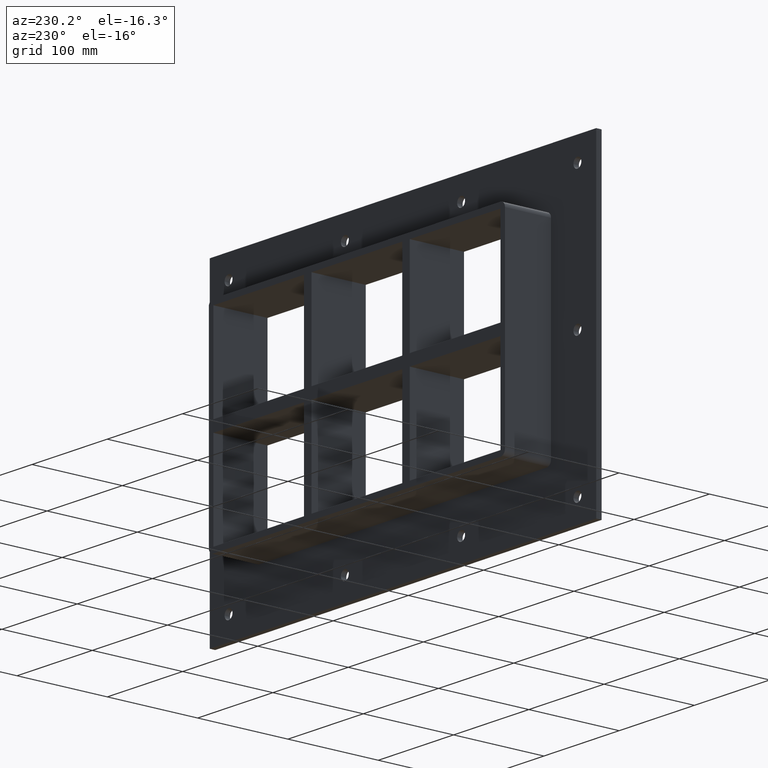
[diagram: clean part render]
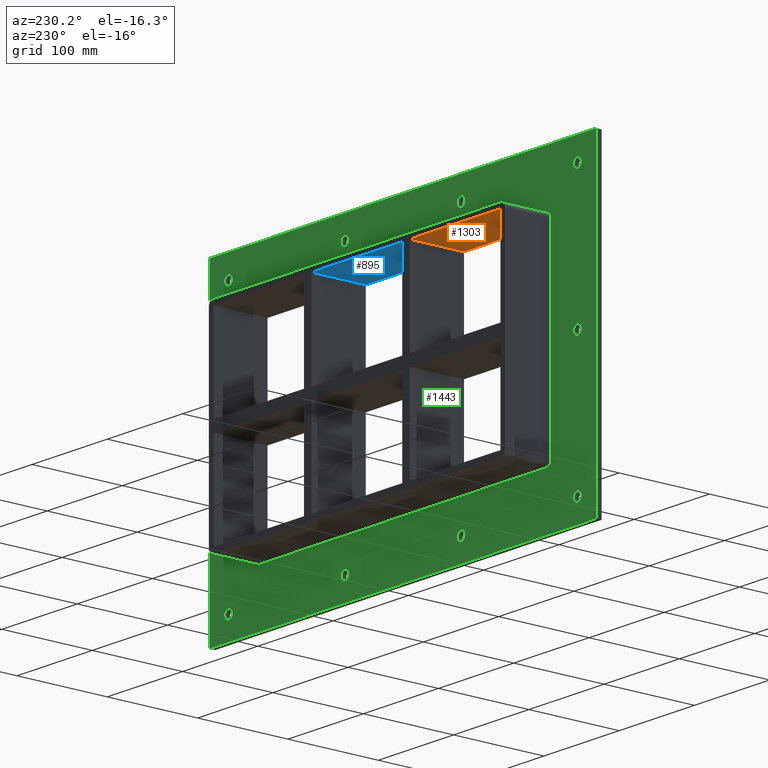
[diagram: same view with three faces highlighted in distinct colors, each labeled with its STEP entity id]
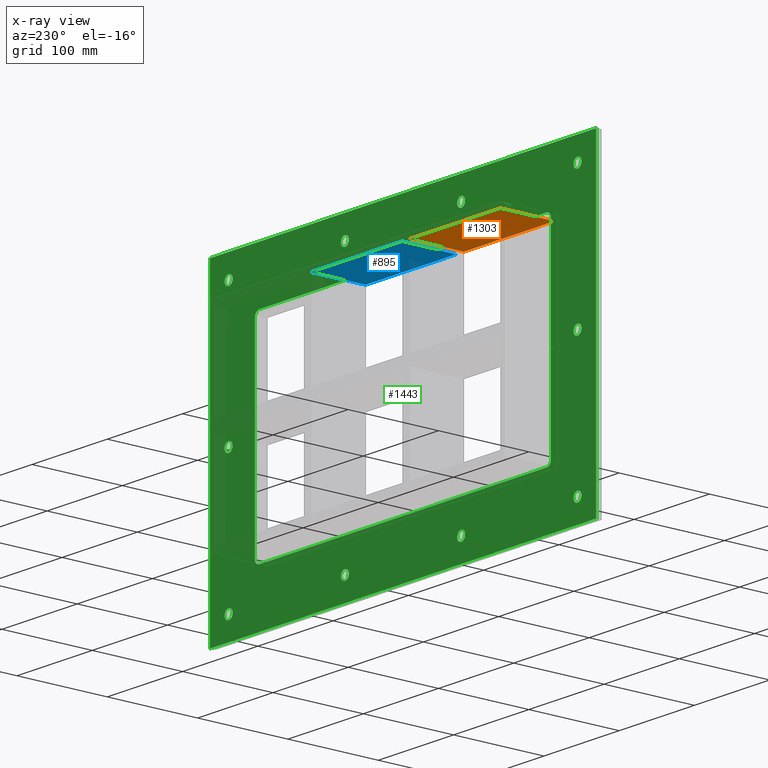
[diagram: x-ray of the same camera — body ghosted, the three highlighted faces saturated]
A machine part, auxiliary view with three faces highlighted in distinct colors.
The next image is the same camera in x-ray (body ghosted, the three faces saturated) — at least one of them is partly hidden behind the body in this view.
Their STEP definitions:

[orange] entity #1303 — the highlighted planar face has unit normal (0, 0, 1).
#767=CARTESIAN_POINT('',(-190.75000000000003,-3.0,107.00000000000003));
#768=VERTEX_POINT('',#767);
#775=CARTESIAN_POINT('',(-70.250000000002117,-3.0,107.00000000000003));
#776=VERTEX_POINT('',#775);
#777=CARTESIAN_POINT('',(-190.75000000000003,-3.0,107.00000000000003));
#778=DIRECTION('',(1.0,0.0,0.0));
#779=VECTOR('',#778,120.49999999999791);
#780=LINE('',#777,#779);
#781=EDGE_CURVE('',#768,#776,#780,.T.);
#1012=CARTESIAN_POINT('',(-190.75000000000003,57.0,107.00000000000003));
#1013=VERTEX_POINT('',#1012);
#1020=CARTESIAN_POINT('',(-190.75000000000003,-3.0,107.00000000000003));
#1021=DIRECTION('',(0.0,1.0,0.0));
#1022=VECTOR('',#1021,60.0);
#1023=LINE('',#1020,#1022);
#1024=EDGE_CURVE('',#768,#1013,#1023,.T.);
#1199=CARTESIAN_POINT('',(-70.250000000002117,57.0,107.00000000000003));
#1200=VERTEX_POINT('',#1199);
#1207=CARTESIAN_POINT('',(-70.250000000002117,57.0,107.00000000000003));
#1208=DIRECTION('',(-1.0,0.0,0.0));
#1209=VECTOR('',#1208,120.49999999999791);
#1210=LINE('',#1207,#1209);
#1211=EDGE_CURVE('',#1200,#1013,#1210,.T.);
#1224=CARTESIAN_POINT('',(-70.250000000002117,57.000000000000007,107.00000000000003));
#1225=DIRECTION('',(0.0,-1.0,0.0));
#1226=VECTOR('',#1225,60.000000000000007);
#1227=LINE('',#1224,#1226);
#1228=EDGE_CURVE('',#1200,#776,#1227,.T.);
#1292=CARTESIAN_POINT('',(-190.75000000000003,0.0,107.00000000000003));
#1293=DIRECTION('',(0.0,0.0,1.0));
#1294=DIRECTION('',(1.0,0.0,0.0));
#1295=AXIS2_PLACEMENT_3D('',#1292,#1293,#1294);
#1296=PLANE('',#1295);
#1297=ORIENTED_EDGE('',*,*,#1228,.T.);
#1298=ORIENTED_EDGE('',*,*,#781,.F.);
#1299=ORIENTED_EDGE('',*,*,#1024,.T.);
#1300=ORIENTED_EDGE('',*,*,#1211,.F.);
#1301=EDGE_LOOP('',(#1297,#1298,#1299,#1300));
#1302=FACE_OUTER_BOUND('',#1301,.T.);
#1303=ADVANCED_FACE('',(#1302),#1296,.F.);

[blue] entity #895 — the highlighted planar face has unit normal (0, 0, 1).
#363=CARTESIAN_POINT('',(60.24999999999789,-3.0,107.00000000000003));
#364=VERTEX_POINT('',#363);
#371=CARTESIAN_POINT('',(60.24999999999789,57.0,107.00000000000003));
#372=VERTEX_POINT('',#371);
#373=CARTESIAN_POINT('',(60.24999999999789,57.000000000000007,107.00000000000003));
#374=DIRECTION('',(0.0,-1.0,0.0));
#375=VECTOR('',#374,60.000000000000007);
#376=LINE('',#373,#375);
#377=EDGE_CURVE('',#372,#364,#376,.T.);
#671=CARTESIAN_POINT('',(-60.249999999996362,-3.0,107.00000000000003));
#672=VERTEX_POINT('',#671);
#679=CARTESIAN_POINT('',(-60.249999999996362,-3.0,107.00000000000003));
#680=DIRECTION('',(1.0,0.0,0.0));
#681=VECTOR('',#680,120.49999999999424);
#682=LINE('',#679,#681);
#683=EDGE_CURVE('',#672,#364,#682,.T.);
#872=CARTESIAN_POINT('',(-190.75000000000003,0.0,107.00000000000003));
#873=DIRECTION('',(0.0,0.0,1.0));
#874=DIRECTION('',(1.0,0.0,0.0));
#875=AXIS2_PLACEMENT_3D('',#872,#873,#874);
#876=PLANE('',#875);
#877=ORIENTED_EDGE('',*,*,#377,.T.);
#878=ORIENTED_EDGE('',*,*,#683,.F.);
#879=CARTESIAN_POINT('',(-60.249999999996362,57.0,107.00000000000003));
#880=VERTEX_POINT('',#879);
#881=CARTESIAN_POINT('',(-60.249999999996362,-3.0,107.00000000000003));
#882=DIRECTION('',(0.0,1.0,0.0));
#883=VECTOR('',#882,60.000000000000007);
#884=LINE('',#881,#883);
#885=EDGE_CURVE('',#672,#880,#884,.T.);
#886=ORIENTED_EDGE('',*,*,#885,.T.);
#887=CARTESIAN_POINT('',(60.249999999997883,57.0,107.00000000000003));
#888=DIRECTION('',(-1.0,0.0,0.0));
#889=VECTOR('',#888,120.49999999999424);
#890=LINE('',#887,#889);
#891=EDGE_CURVE('',#372,#880,#890,.T.);
#892=ORIENTED_EDGE('',*,*,#891,.F.);
#893=EDGE_LOOP('',(#877,#878,#886,#892));
#894=FACE_OUTER_BOUND('',#893,.T.);
#895=ADVANCED_FACE('',(#894),#876,.F.);

[green] entity #1443 — the highlighted planar face has unit normal (0, 1, 0).
#73=CARTESIAN_POINT('',(-237.00000000000017,6.000000000000014,-148.00000000000011));
#74=VERTEX_POINT('',#73);
#75=CARTESIAN_POINT('',(-231.75000000000017,6.000000000000014,-148.00000000000011));
#76=DIRECTION('',(0.0,-1.0,0.0));
#77=DIRECTION('',(1.0,0.0,0.0));
#78=AXIS2_PLACEMENT_3D('',#75,#76,#77);
#79=CIRCLE('',#78,5.25);
#80=EDGE_CURVE('',#74,#74,#79,.T.);
#101=CARTESIAN_POINT('',(226.49999999999983,6.000000000000014,-1.065814E-013));
#102=VERTEX_POINT('',#101);
#103=CARTESIAN_POINT('',(231.74999999999983,6.000000000000014,-1.065814E-013));
#104=DIRECTION('',(0.0,-1.0,0.0));
#105=DIRECTION('',(1.0,0.0,0.0));
#106=AXIS2_PLACEMENT_3D('',#103,#104,#105);
#107=CIRCLE('',#106,5.25);
#108=EDGE_CURVE('',#102,#102,#107,.T.);
#129=CARTESIAN_POINT('',(-237.00000000000017,6.000000000000014,-1.065814E-013));
#130=VERTEX_POINT('',#129);
#131=CARTESIAN_POINT('',(-231.75000000000017,6.000000000000014,-1.065814E-013));
#132=DIRECTION('',(0.0,-1.0,0.0));
#133=DIRECTION('',(1.0,0.0,0.0));
#134=AXIS2_PLACEMENT_3D('',#131,#132,#133);
#135=CIRCLE('',#134,5.25);
#136=EDGE_CURVE('',#130,#130,#135,.T.);
#157=CARTESIAN_POINT('',(-82.500000000000171,6.000000000000014,147.99999999999989));
#158=VERTEX_POINT('',#157);
#159=CARTESIAN_POINT('',(-77.250000000000199,6.000000000000014,147.99999999999989));
#160=DIRECTION('',(0.0,-1.0,0.0));
#161=DIRECTION('',(1.0,0.0,0.0));
#162=AXIS2_PLACEMENT_3D('',#159,#160,#161);
#163=CIRCLE('',#162,5.25);
#164=EDGE_CURVE('',#158,#158,#163,.T.);
#185=CARTESIAN_POINT('',(-82.500000000000171,6.000000000000014,-148.00000000000009));
#186=VERTEX_POINT('',#185);
#187=CARTESIAN_POINT('',(-77.250000000000199,6.000000000000014,-148.00000000000009));
#188=DIRECTION('',(0.0,-1.0,0.0));
#189=DIRECTION('',(1.0,0.0,0.0));
#190=AXIS2_PLACEMENT_3D('',#187,#188,#189);
#191=CIRCLE('',#190,5.25);
#192=EDGE_CURVE('',#186,#186,#191,.T.);
#213=CARTESIAN_POINT('',(71.999999999999829,6.000000000000014,147.99999999999989));
#214=VERTEX_POINT('',#213);
#215=CARTESIAN_POINT('',(77.249999999999815,6.000000000000014,147.99999999999989));
#216=DIRECTION('',(0.0,-1.0,0.0));
#217=DIRECTION('',(1.0,0.0,0.0));
#218=AXIS2_PLACEMENT_3D('',#215,#216,#217);
#219=CIRCLE('',#218,5.25);
#220=EDGE_CURVE('',#214,#214,#219,.T.);
#241=CARTESIAN_POINT('',(71.999999999999829,6.000000000000014,-148.00000000000009));
#242=VERTEX_POINT('',#241);
#243=CARTESIAN_POINT('',(77.249999999999815,6.000000000000014,-148.00000000000009));
#244=DIRECTION('',(0.0,-1.0,0.0));
#245=DIRECTION('',(1.0,0.0,0.0));
#246=AXIS2_PLACEMENT_3D('',#243,#244,#245);
#247=CIRCLE('',#246,5.25);
#248=EDGE_CURVE('',#242,#242,#247,.T.);
#269=CARTESIAN_POINT('',(226.49999999999983,6.000000000000014,-148.00000000000009));
#270=VERTEX_POINT('',#269);
#271=CARTESIAN_POINT('',(231.74999999999983,6.000000000000014,-148.00000000000009));
#272=DIRECTION('',(0.0,-1.0,0.0));
#273=DIRECTION('',(1.0,0.0,0.0));
#274=AXIS2_PLACEMENT_3D('',#271,#272,#273);
#275=CIRCLE('',#274,5.25);
#276=EDGE_CURVE('',#270,#270,#275,.T.);
#297=CARTESIAN_POINT('',(-237.00000000000017,6.000000000000014,147.99999999999989));
#298=VERTEX_POINT('',#297);
#299=CARTESIAN_POINT('',(-231.75000000000017,6.000000000000014,147.99999999999989));
#300=DIRECTION('',(0.0,-1.0,0.0));
#301=DIRECTION('',(1.0,0.0,0.0));
#302=AXIS2_PLACEMENT_3D('',#299,#300,#301);
#303=CIRCLE('',#302,5.25);
#304=EDGE_CURVE('',#298,#298,#303,.T.);
#325=CARTESIAN_POINT('',(226.49999999999983,6.000000000000014,147.99999999999989));
#326=VERTEX_POINT('',#325);
#327=CARTESIAN_POINT('',(231.74999999999983,6.000000000000014,147.99999999999989));
#328=DIRECTION('',(0.0,-1.0,0.0));
#329=DIRECTION('',(1.0,0.0,0.0));
#330=AXIS2_PLACEMENT_3D('',#327,#328,#329);
#331=CIRCLE('',#330,5.25);
#332=EDGE_CURVE('',#326,#326,#331,.T.);
#1304=CARTESIAN_POINT('',(-1.984063E-014,6.000000000000001,-1.707121E-014));
#1305=DIRECTION('',(0.0,1.0,0.0));
#1306=DIRECTION('',(0.0,0.0,1.0));
#1307=AXIS2_PLACEMENT_3D('',#1304,#1305,#1306);
#1308=PLANE('',#1307);
#1309=CARTESIAN_POINT('',(-256.75000000000006,6.000000000000001,173.00000000000006));
#1310=VERTEX_POINT('',#1309);
#1311=CARTESIAN_POINT('',(256.75000000000006,6.000000000000001,173.00000000000006));
#1312=VERTEX_POINT('',#1311);
#1313=CARTESIAN_POINT('',(-256.75000000000006,6.000000000000001,173.00000000000006));
#1314=DIRECTION('',(1.0,0.0,0.0));
#1315=VECTOR('',#1314,513.50000000000011);
#1316=LINE('',#1313,#1315);
#1317=EDGE_CURVE('',#1310,#1312,#1316,.T.);
#1318=ORIENTED_EDGE('',*,*,#1317,.T.);
#1319=CARTESIAN_POINT('',(256.75000000000006,6.000000000000001,-173.00000000000006));
#1320=VERTEX_POINT('',#1319);
#1321=CARTESIAN_POINT('',(256.75,6.000000000000001,173.00000000000006));
#1322=DIRECTION('',(0.0,0.0,-1.0));
#1323=VECTOR('',#1322,346.00000000000011);
#1324=LINE('',#1321,#1323);
#1325=EDGE_CURVE('',#1312,#1320,#1324,.T.);
#1326=ORIENTED_EDGE('',*,*,#1325,.T.);
#1327=CARTESIAN_POINT('',(-256.75000000000006,6.000000000000001,-173.00000000000006));
#1328=VERTEX_POINT('',#1327);
#1329=CARTESIAN_POINT('',(256.75,6.000000000000001,-173.00000000000009));
#1330=DIRECTION('',(-1.0,0.0,0.0));
#1331=VECTOR('',#1330,513.50000000000011);
#1332=LINE('',#1329,#1331);
#1333=EDGE_CURVE('',#1320,#1328,#1332,.T.);
#1334=ORIENTED_EDGE('',*,*,#1333,.T.);
#1335=CARTESIAN_POINT('',(-256.75000000000006,6.000000000000001,-173.00000000000009));
#1336=DIRECTION('',(0.0,0.0,1.0));
#1337=VECTOR('',#1336,346.00000000000011);
#1338=LINE('',#1335,#1337);
#1339=EDGE_CURVE('',#1328,#1310,#1338,.T.);
#1340=ORIENTED_EDGE('',*,*,#1339,.T.);
#1341=EDGE_LOOP('',(#1318,#1326,#1334,#1340));
#1342=FACE_OUTER_BOUND('',#1341,.T.);
#1343=ORIENTED_EDGE('',*,*,#80,.T.);
#1344=EDGE_LOOP('',(#1343));
#1345=FACE_BOUND('',#1344,.T.);
#1346=ORIENTED_EDGE('',*,*,#108,.T.);
#1347=EDGE_LOOP('',(#1346));
#1348=FACE_BOUND('',#1347,.T.);
#1349=ORIENTED_EDGE('',*,*,#136,.T.);
#1350=EDGE_LOOP('',(#1349));
#1351=FACE_BOUND('',#1350,.T.);
#1352=ORIENTED_EDGE('',*,*,#164,.T.);
#1353=EDGE_LOOP('',(#1352));
#1354=FACE_BOUND('',#1353,.T.);
#1355=ORIENTED_EDGE('',*,*,#192,.T.);
#1356=EDGE_LOOP('',(#1355));
#1357=FACE_BOUND('',#1356,.T.);
#1358=ORIENTED_EDGE('',*,*,#220,.T.);
#1359=EDGE_LOOP('',(#1358));
#1360=FACE_BOUND('',#1359,.T.);
#1361=ORIENTED_EDGE('',*,*,#248,.T.);
#1362=EDGE_LOOP('',(#1361));
#1363=FACE_BOUND('',#1362,.T.);
#1364=ORIENTED_EDGE('',*,*,#276,.T.);
#1365=EDGE_LOOP('',(#1364));
#1366=FACE_BOUND('',#1365,.T.);
#1367=ORIENTED_EDGE('',*,*,#304,.T.);
#1368=EDGE_LOOP('',(#1367));
#1369=FACE_BOUND('',#1368,.T.);
#1370=ORIENTED_EDGE('',*,*,#332,.T.);
#1371=EDGE_LOOP('',(#1370));
#1372=FACE_BOUND('',#1371,.T.);
#1373=CARTESIAN_POINT('',(-190.75000000000003,6.000000000000001,-113.00000000000004));
#1374=VERTEX_POINT('',#1373);
#1375=CARTESIAN_POINT('',(-196.75000000000006,6.000000000000001,-107.00000000000003));
#1376=VERTEX_POINT('',#1375);
#1377=CARTESIAN_POINT('',(-190.75000000000003,6.000000000000001,-107.00000000000003));
#1378=DIRECTION('',(0.0,1.0,0.0));
#1379=DIRECTION('',(-0.707106781186548,0.0,-0.707106781186548));
#1380=AXIS2_PLACEMENT_3D('',#1377,#1378,#1379);
#1381=CIRCLE('',#1380,6.000000000000002);
#1382=EDGE_CURVE('',#1374,#1376,#1381,.T.);
#1383=ORIENTED_EDGE('',*,*,#1382,.F.);
#1384=CARTESIAN_POINT('',(190.75000000000003,6.000000000000001,-113.00000000000004));
#1385=VERTEX_POINT('',#1384);
#1386=CARTESIAN_POINT('',(190.75000000000003,6.000000000000001,-113.00000000000004));
#1387=DIRECTION('',(-1.0,0.0,0.0));
#1388=VECTOR('',#1387,381.5);
#1389=LINE('',#1386,#1388);
#1390=EDGE_CURVE('',#1385,#1374,#1389,.T.);
#1391=ORIENTED_EDGE('',*,*,#1390,.F.);
#1392=CARTESIAN_POINT('',(196.75000000000006,6.000000000000001,-107.00000000000003));
#1393=VERTEX_POINT('',#1392);
#1394=CARTESIAN_POINT('',(190.75000000000003,6.000000000000001,-107.00000000000003));
#1395=DIRECTION('',(0.0,1.0,0.0));
#1396=DIRECTION('',(0.707106781186548,0.0,-0.707106781186548));
#1397=AXIS2_PLACEMENT_3D('',#1394,#1395,#1396);
#1398=CIRCLE('',#1397,6.000000000000002);
#1399=EDGE_CURVE('',#1393,#1385,#1398,.T.);
#1400=ORIENTED_EDGE('',*,*,#1399,.F.);
#1401=CARTESIAN_POINT('',(196.75000000000006,6.000000000000001,106.99999999999997));
#1402=VERTEX_POINT('',#1401);
#1403=CARTESIAN_POINT('',(196.75000000000006,6.000000000000001,106.99999999999997));
#1404=DIRECTION('',(0.0,0.0,-1.0));
#1405=VECTOR('',#1404,214.0);
#1406=LINE('',#1403,#1405);
#1407=EDGE_CURVE('',#1402,#1393,#1406,.T.);
#1408=ORIENTED_EDGE('',*,*,#1407,.F.);
#1409=CARTESIAN_POINT('',(190.75000000000003,6.000000000000001,112.99999999999997));
#1410=VERTEX_POINT('',#1409);
#1411=CARTESIAN_POINT('',(190.75000000000003,6.000000000000001,106.99999999999997));
#1412=DIRECTION('',(0.0,1.0,0.0));
#1413=DIRECTION('',(0.70710678118655,0.0,0.707106781186545));
#1414=AXIS2_PLACEMENT_3D('',#1411,#1412,#1413);
#1415=CIRCLE('',#1414,6.000000000000001);
#1416=EDGE_CURVE('',#1410,#1402,#1415,.T.);
#1417=ORIENTED_EDGE('',*,*,#1416,.F.);
#1418=CARTESIAN_POINT('',(-190.75000000000003,6.000000000000001,112.99999999999997));
#1419=VERTEX_POINT('',#1418);
#1420=CARTESIAN_POINT('',(-190.75000000000003,6.000000000000001,112.99999999999997));
#1421=DIRECTION('',(1.0,0.0,0.0));
#1422=VECTOR('',#1421,381.50000000000011);
#1423=LINE('',#1420,#1422);
#1424=EDGE_CURVE('',#1419,#1410,#1423,.T.);
#1425=ORIENTED_EDGE('',*,*,#1424,.F.);
#1426=CARTESIAN_POINT('',(-196.75000000000006,6.000000000000001,106.99999999999996));
#1427=VERTEX_POINT('',#1426);
#1428=CARTESIAN_POINT('',(-190.75000000000003,6.000000000000001,106.99999999999996));
#1429=DIRECTION('',(0.0,1.0,0.0));
#1430=DIRECTION('',(-0.707106781186548,0.0,0.707106781186548));
#1431=AXIS2_PLACEMENT_3D('',#1428,#1429,#1430);
#1432=CIRCLE('',#1431,6.000000000000002);
#1433=EDGE_CURVE('',#1427,#1419,#1432,.T.);
#1434=ORIENTED_EDGE('',*,*,#1433,.F.);
#1435=CARTESIAN_POINT('',(-196.75000000000006,6.000000000000001,-107.00000000000003));
#1436=DIRECTION('',(0.0,0.0,1.0));
#1437=VECTOR('',#1436,213.99999999999997);
#1438=LINE('',#1435,#1437);
#1439=EDGE_CURVE('',#1376,#1427,#1438,.T.);
#1440=ORIENTED_EDGE('',*,*,#1439,.F.);
#1441=EDGE_LOOP('',(#1383,#1391,#1400,#1408,#1417,#1425,#1434,#1440));
#1442=FACE_BOUND('',#1441,.T.);
#1443=ADVANCED_FACE('',(#1342,#1345,#1348,#1351,#1354,#1357,#1360,#1363,#1366,#1369,#1372,#1442),#1308,.T.);